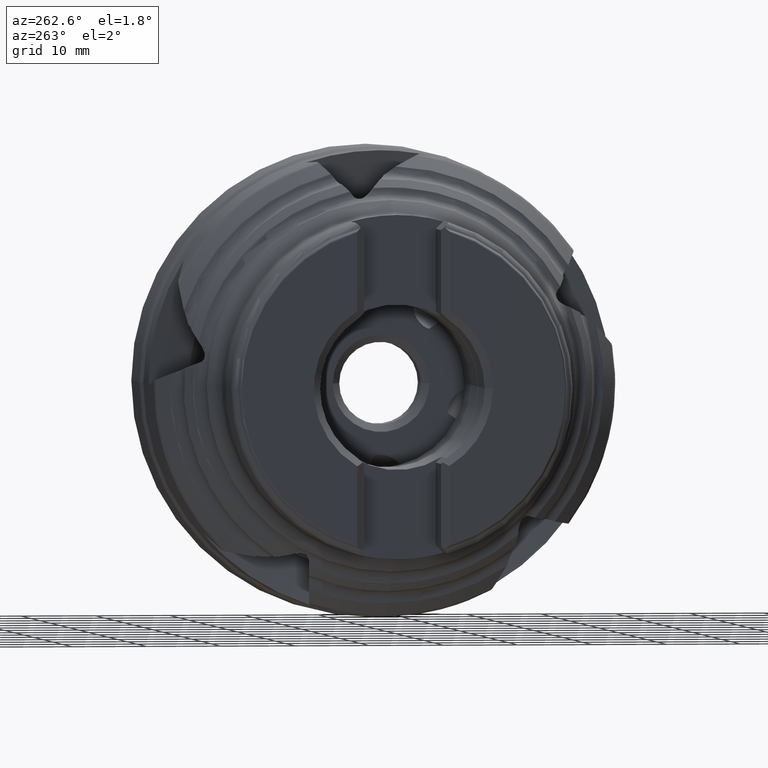
[diagram: clean part render]
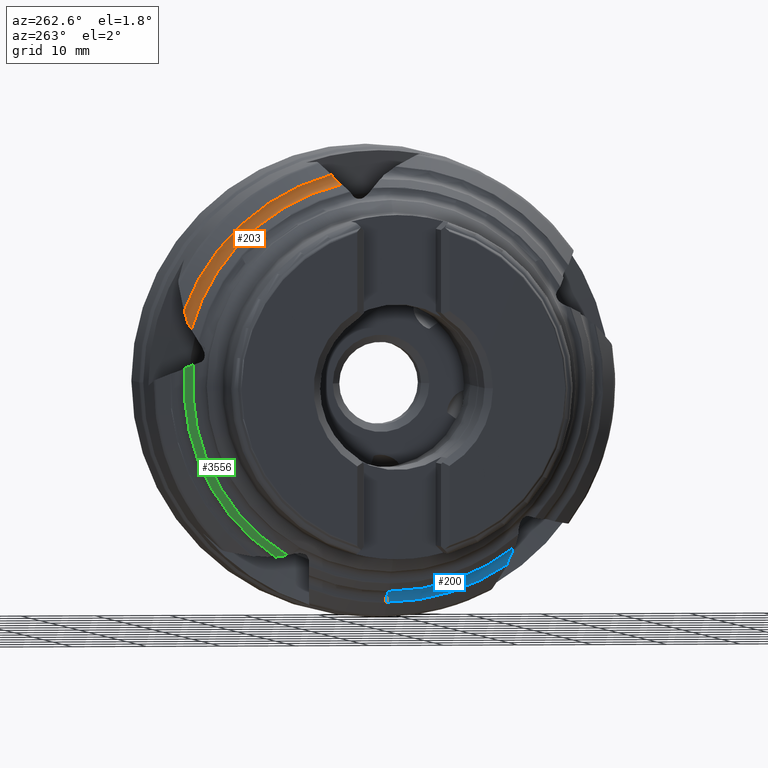
[diagram: same view with three faces highlighted in distinct colors, each labeled with its STEP entity id]
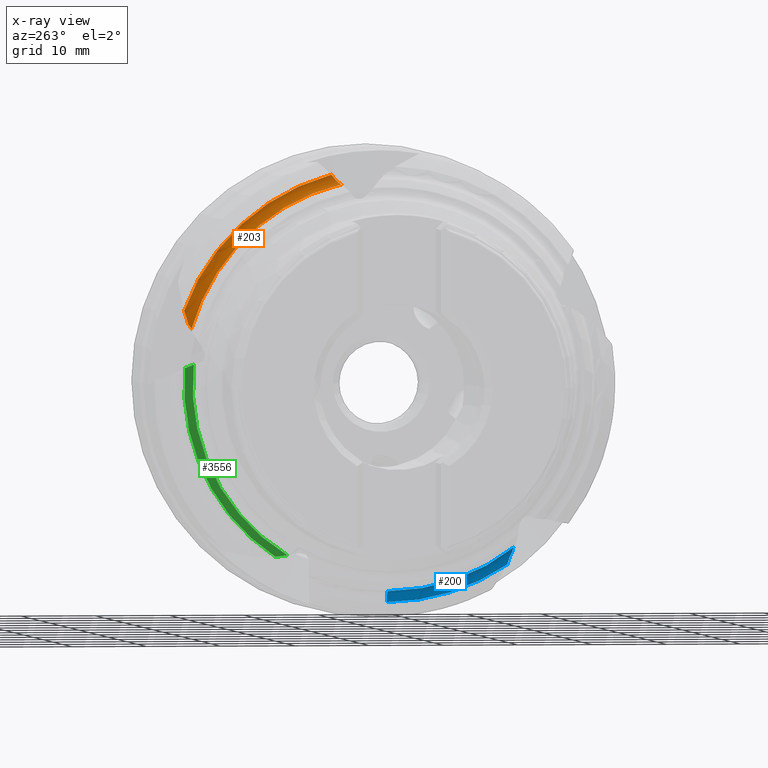
[diagram: x-ray of the same camera — body ghosted, the three highlighted faces saturated]
A machine part, auxiliary view with three faces highlighted in distinct colors.
The next image is the same camera in x-ray (body ghosted, the three faces saturated) — at least one of them is partly hidden behind the body in this view.
Their STEP definitions:

[orange] entity #203 — the highlighted toroidal blend (fillet) surface has major radius 29.0539 mm and minor (blend) radius 1.5 mm.
#203 = ADVANCED_FACE ( 'NONE', ( #4387 ), #4248, .F. ) ;
#248 = EDGE_CURVE ( 'NONE', #480, #700, #10505, .T. ) ;
#249 = EDGE_CURVE ( 'NONE', #480, #702, #4297, .T. ) ;
#250 = EDGE_CURVE ( 'NONE', #701, #702, #10506, .T. ) ;
#251 = EDGE_CURVE ( 'NONE', #482, #701, #4301, .T. ) ;
#252 = EDGE_CURVE ( 'NONE', #700, #482, #10504, .T. ) ;
#303 = EDGE_LOOP ( 'NONE', ( #543, #544, #545, #546, #547 ) ) ;
#480 = VERTEX_POINT ( 'NONE', #4768 ) ;
#482 = VERTEX_POINT ( 'NONE', #4770 ) ;
#543 = ORIENTED_EDGE ( 'NONE', *, *, #248, .F. ) ;
#544 = ORIENTED_EDGE ( 'NONE', *, *, #249, .T. ) ;
#545 = ORIENTED_EDGE ( 'NONE', *, *, #250, .F. ) ;
#546 = ORIENTED_EDGE ( 'NONE', *, *, #251, .F. ) ;
#547 = ORIENTED_EDGE ( 'NONE', *, *, #252, .F. ) ;
#700 = VERTEX_POINT ( 'NONE', #4794 ) ;
#701 = VERTEX_POINT ( 'NONE', #4797 ) ;
#702 = VERTEX_POINT ( 'NONE', #4798 ) ;
#4248 = TOROIDAL_SURFACE ( 'NONE', #4251, 29.05387160771681500, 1.500000000000000000 ) ;
#4251 = AXIS2_PLACEMENT_3D ( 'NONE', #4392, #4389, #4394 ) ;
#4297 = CIRCLE ( 'NONE', #4300, 27.55387160771681500 ) ;
#4299 = AXIS2_PLACEMENT_3D ( 'NONE', #4638, #4639, #4640 ) ;
#4300 = AXIS2_PLACEMENT_3D ( 'NONE', #4619, #4620, #4621 ) ;
#4301 = CIRCLE ( 'NONE', #4299, 29.05037644407040200 ) ;
#4387 = FACE_OUTER_BOUND ( 'NONE', #303, .T. ) ;
#4389 = DIRECTION ( 'NONE',  ( 1.000000000000000000, -0.0000000000000000000, -0.0000000000000000000 ) ) ;
#4392 = CARTESIAN_POINT ( 'NONE',  ( -22.58210432144572300, 0.0000000000000000000, 0.0000000000000000000 ) ) ;
#4394 = DIRECTION ( 'NONE',  ( 0.0000000000000000000, 0.0000000000000000000, -1.000000000000000000 ) ) ;
#4606 = CARTESIAN_POINT ( 'NONE',  ( -21.78011351886360800, 26.57158343351553500, 7.918157684028360100 ) ) ;
#4614 = CARTESIAN_POINT ( 'NONE',  ( -22.16748034680138000, 26.46549646402893400, 7.669045109505294300 ) ) ;
#4615 = CARTESIAN_POINT ( 'NONE',  ( -22.58210432144555600, 26.50501868700274600, 7.529928616937789700 ) ) ;
#4616 = CARTESIAN_POINT ( 'NONE',  ( -21.50426107264349800, 26.79043684464510400, 8.177441414930152400 ) ) ;
#4617 = CARTESIAN_POINT ( 'NONE',  ( -21.12125030229448800, 7.209107115437519500, 27.74206809546811700 ) ) ;
#4618 = CARTESIAN_POINT ( 'NONE',  ( -21.08256008923887500, 7.336665319204715100, 27.90838598010486000 ) ) ;
#4619 = CARTESIAN_POINT ( 'NONE',  ( -22.58210432144572300, 0.0000000000000000000, 0.0000000000000000000 ) ) ;
#4620 = DIRECTION ( 'NONE',  ( 1.000000000000000000, -0.0000000000000000000, -0.0000000000000000000 ) ) ;
#4621 = DIRECTION ( 'NONE',  ( 0.0000000000000000000, 0.0000000000000000000, -1.000000000000000000 ) ) ;
#4622 = CARTESIAN_POINT ( 'NONE',  ( -21.08210839350755400, 7.458880808370978800, 28.07649316828431200 ) ) ;
#4623 = CARTESIAN_POINT ( 'NONE',  ( -21.22986162204349700, 7.025265784976173000, 27.51500143369746400 ) ) ;
#4624 = CARTESIAN_POINT ( 'NONE',  ( -21.27515504357506200, 6.964089279282150700, 27.44162896079828300 ) ) ;
#4625 = CARTESIAN_POINT ( 'NONE',  ( -21.38073822512718200, 6.846683938752137900, 27.30527955948086600 ) ) ;
#4626 = CARTESIAN_POINT ( 'NONE',  ( -21.44080502275138000, 6.790428237353662400, 27.24221234157898100 ) ) ;
#4627 = CARTESIAN_POINT ( 'NONE',  ( -21.57565572286060300, 6.682866837787087500, 27.12640989507478300 ) ) ;
#4628 = CARTESIAN_POINT ( 'NONE',  ( -21.65136935222798100, 6.631086942329067000, 27.07324428977764800 ) ) ;
#4629 = CARTESIAN_POINT ( 'NONE',  ( -21.81284933720900200, 6.536694383951418900, 26.98193432277225400 ) ) ;
#4630 = CARTESIAN_POINT ( 'NONE',  ( -21.89880115748872300, 6.493739391900353700, 26.94336313047400100 ) ) ;
#4631 = CARTESIAN_POINT ( 'NONE',  ( -22.08164374832919900, 6.416731319182070500, 26.88108870447483400 ) ) ;
#4632 = CARTESIAN_POINT ( 'NONE',  ( -22.17947527182912300, 6.382539709937731200, 26.85741973878278100 ) ) ;
#4633 = CARTESIAN_POINT ( 'NONE',  ( -22.37752949405827300, 6.327106652283240400, 26.82847791025291800 ) ) ;
#4634 = CARTESIAN_POINT ( 'NONE',  ( -22.47867867706628100, 6.305355540125368000, 26.82272508001487700 ) ) ;
#4635 = CARTESIAN_POINT ( 'NONE',  ( -22.58210432144572300, 6.290003853290564000, 26.82632461035489500 ) ) ;
#4636 = CARTESIAN_POINT ( 'NONE',  ( -21.37450191416252600, 26.84300000493433200, 8.464471860615114800 ) ) ;
#4637 = CARTESIAN_POINT ( 'NONE',  ( -21.50426107264349800, 26.79043684464510400, 8.177441414930152400 ) ) ;
#4638 = CARTESIAN_POINT ( 'NONE',  ( -21.08210839350755400, 0.0000000000000000000, 0.0000000000000000000 ) ) ;
#4639 = DIRECTION ( 'NONE',  ( 1.000000000000000000, -0.0000000000000000000, -0.0000000000000000000 ) ) ;
#4640 = DIRECTION ( 'NONE',  ( 0.0000000000000000000, 0.0000000000000000000, -1.000000000000000000 ) ) ;
#4641 = CARTESIAN_POINT ( 'NONE',  ( -21.27257383129257200, 26.91066472543195300, 8.756920072891512400 ) ) ;
#4642 = CARTESIAN_POINT ( 'NONE',  ( -21.12636694094393200, 27.07727553030468200, 9.353038856313942200 ) ) ;
#4643 = CARTESIAN_POINT ( 'NONE',  ( -21.08259946442136000, 27.17615865926455900, 9.655944487197933400 ) ) ;
#4644 = CARTESIAN_POINT ( 'NONE',  ( -21.08210839350755400, 27.29251892158847100, 9.952024038201258800 ) ) ;
#4768 = CARTESIAN_POINT ( 'NONE',  ( -22.58210432144555600, 26.50501868700274600, 7.529928616937789700 ) ) ;
#4770 = CARTESIAN_POINT ( 'NONE',  ( -21.08210839350755400, 27.29251892158847100, 9.952024038201258800 ) ) ;
#4794 = CARTESIAN_POINT ( 'NONE',  ( -21.50426107264349800, 26.79043684464510400, 8.177441414930152400 ) ) ;
#4797 = CARTESIAN_POINT ( 'NONE',  ( -21.08210839350755400, 7.458880808370978800, 28.07649316828431200 ) ) ;
#4798 = CARTESIAN_POINT ( 'NONE',  ( -22.58210432144572300, 6.290003853290564000, 26.82632461035489500 ) ) ;
#10504 = B_SPLINE_CURVE_WITH_KNOTS ( 'NONE', 3,
 ( #4637, #4636, #4641, #4642, #4643, #4644 ),
 .UNSPECIFIED., .F., .F.,
 ( 4, 2, 4 ),
 ( 0.001983305558607717300, 0.002932427451923820000, 0.003881549345239922400 ),
 .UNSPECIFIED. ) ;
#10505 = B_SPLINE_CURVE_WITH_KNOTS ( 'NONE', 3,
 ( #4615, #4614, #4606, #4616 ),
 .UNSPECIFIED., .F., .F.,
 ( 4, 4 ),
 ( 0.0001364347269612824100, 0.001448720721892450700 ),
 .UNSPECIFIED. ) ;
#10506 = B_SPLINE_CURVE_WITH_KNOTS ( 'NONE', 3,
 ( #4622, #4618, #4617, #4623, #4624, #4625, #4626, #4627, #4628, #4629, #4630, #4631, #4632, #4633, #4634, #4635 ),
 .UNSPECIFIED., .F., .F.,
 ( 4, 2, 2, 2, 2, 2, 2, 4 ),
 ( 0.001282181288688024100, 0.001904912523629263400, 0.002216278141099887300, 0.002527643758570511500, 0.002839009376041135700, 0.003150374993511759900, 0.003461740610982384100, 0.003773106228453008300 ),
 .UNSPECIFIED. ) ;

[blue] entity #200 — the highlighted toroidal blend (fillet) surface has major radius 29.0539 mm and minor (blend) radius 1.5 mm.
#200 = ADVANCED_FACE ( 'NONE', ( #4374 ), #4231, .F. ) ;
#235 = EDGE_CURVE ( 'NONE', #489, #495, #10513, .T. ) ;
#236 = EDGE_CURVE ( 'NONE', #489, #498, #4288, .T. ) ;
#237 = EDGE_CURVE ( 'NONE', #497, #498, #4286, .T. ) ;
#238 = EDGE_CURVE ( 'NONE', #491, #497, #4289, .T. ) ;
#239 = EDGE_CURVE ( 'NONE', #495, #491, #10512, .T. ) ;
#305 = EDGE_LOOP ( 'NONE', ( #528, #529, #530, #531, #532 ) ) ;
#489 = VERTEX_POINT ( 'NONE', #4777 ) ;
#491 = VERTEX_POINT ( 'NONE', #4779 ) ;
#495 = VERTEX_POINT ( 'NONE', #4783 ) ;
#497 = VERTEX_POINT ( 'NONE', #4785 ) ;
#498 = VERTEX_POINT ( 'NONE', #4786 ) ;
#528 = ORIENTED_EDGE ( 'NONE', *, *, #235, .F. ) ;
#529 = ORIENTED_EDGE ( 'NONE', *, *, #236, .T. ) ;
#530 = ORIENTED_EDGE ( 'NONE', *, *, #237, .F. ) ;
#531 = ORIENTED_EDGE ( 'NONE', *, *, #238, .F. ) ;
#532 = ORIENTED_EDGE ( 'NONE', *, *, #239, .F. ) ;
#4231 = TOROIDAL_SURFACE ( 'NONE', #4245, 29.05387160771681500, 1.500000000000000000 ) ;
#4245 = AXIS2_PLACEMENT_3D ( 'NONE', #4380, #4377, #4382 ) ;
#4286 = CIRCLE ( 'NONE', #4291, 1.500000000000001300 ) ;
#4287 = AXIS2_PLACEMENT_3D ( 'NONE', #4560, #4561, #4562 ) ;
#4288 = CIRCLE ( 'NONE', #4287, 27.55387160771681500 ) ;
#4289 = CIRCLE ( 'NONE', #4293, 29.05037644407040200 ) ;
#4291 = AXIS2_PLACEMENT_3D ( 'NONE', #4563, #4564, #4565 ) ;
#4293 = AXIS2_PLACEMENT_3D ( 'NONE', #4568, #4569, #4570 ) ;
#4374 = FACE_OUTER_BOUND ( 'NONE', #305, .T. ) ;
#4377 = DIRECTION ( 'NONE',  ( 1.000000000000000000, -0.0000000000000000000, -0.0000000000000000000 ) ) ;
#4380 = CARTESIAN_POINT ( 'NONE',  ( -22.58210432144572300, 0.0000000000000000000, 0.0000000000000000000 ) ) ;
#4382 = DIRECTION ( 'NONE',  ( 0.0000000000000000000, 0.0000000000000000000, -1.000000000000000000 ) ) ;
#4548 = CARTESIAN_POINT ( 'NONE',  ( -21.78011351886361500, -16.84268625316751100, -22.02430900279907500 ) ) ;
#4556 = CARTESIAN_POINT ( 'NONE',  ( -22.16748034680138700, -16.90328478943638400, -21.76041634037280300 ) ) ;
#4557 = CARTESIAN_POINT ( 'NONE',  ( -22.58210432144555600, -17.01702956215950000, -21.67109931348967300 ) ) ;
#4558 = CARTESIAN_POINT ( 'NONE',  ( -21.50426107264350900, -16.86733922886480700, -22.36271275493942300 ) ) ;
#4559 = CARTESIAN_POINT ( 'NONE',  ( -21.50426107264350900, -16.86733922886480700, -22.36271275493942300 ) ) ;
#4560 = CARTESIAN_POINT ( 'NONE',  ( -22.58210432144572300, 0.0000000000000000000, 0.0000000000000000000 ) ) ;
#4561 = DIRECTION ( 'NONE',  ( 1.000000000000000000, -0.0000000000000000000, -0.0000000000000000000 ) ) ;
#4562 = DIRECTION ( 'NONE',  ( 0.0000000000000000000, 0.0000000000000000000, -1.000000000000000000 ) ) ;
#4563 = CARTESIAN_POINT ( 'NONE',  ( -22.58210432144572300, 0.0000000000000000000, -29.05387160771681500 ) ) ;
#4564 = DIRECTION ( 'NONE',  ( -0.0000000000000000000, -1.000000000000000000, -0.0000000000000000000 ) ) ;
#4565 = DIRECTION ( 'NONE',  ( 0.0000000000000000000, 0.0000000000000000000, -1.000000000000000000 ) ) ;
#4566 = CARTESIAN_POINT ( 'NONE',  ( -21.37450191416253600, -16.74115145588430000, -22.62582111383347800 ) ) ;
#4568 = CARTESIAN_POINT ( 'NONE',  ( -21.08210839350755400, 0.0000000000000000000, 0.0000000000000000000 ) ) ;
#4569 = DIRECTION ( 'NONE',  ( 1.000000000000000000, -0.0000000000000000000, -0.0000000000000000000 ) ) ;
#4570 = DIRECTION ( 'NONE',  ( 0.0000000000000000000, 0.0000000000000000000, -1.000000000000000000 ) ) ;
#4571 = CARTESIAN_POINT ( 'NONE',  ( -21.27257383129256900, -16.62399661845112700, -22.90218901234864300 ) ) ;
#4572 = CARTESIAN_POINT ( 'NONE',  ( -21.12636694094393200, -16.40839776152941100, -23.48239061278027900 ) ) ;
#4573 = CARTESIAN_POINT ( 'NONE',  ( -21.08259946442136000, -16.31035243064496100, -23.78556846076044500 ) ) ;
#4574 = CARTESIAN_POINT ( 'NONE',  ( -21.08210839350755400, -16.23045866674979700, -24.09349669535592400 ) ) ;
#4777 = CARTESIAN_POINT ( 'NONE',  ( -22.58210432144555600, -17.01702956215950000, -21.67109931348967300 ) ) ;
#4779 = CARTESIAN_POINT ( 'NONE',  ( -21.08210839350755400, -16.23045866674979700, -24.09349669535592400 ) ) ;
#4783 = CARTESIAN_POINT ( 'NONE',  ( -21.50426107264350900, -16.86733922886480700, -22.36271275493942300 ) ) ;
#4785 = CARTESIAN_POINT ( 'NONE',  ( -21.08210839350755400, 0.0000000000000000000, -29.05037644407040200 ) ) ;
#4786 = CARTESIAN_POINT ( 'NONE',  ( -22.58210432144572300, 0.0000000000000000000, -27.55387160771681500 ) ) ;
#10512 = B_SPLINE_CURVE_WITH_KNOTS ( 'NONE', 3,
 ( #4559, #4566, #4571, #4572, #4573, #4574 ),
 .UNSPECIFIED., .F., .F.,
 ( 4, 2, 4 ),
 ( 0.001983305558607701200, 0.002932427451923813900, 0.003881549345239926700 ),
 .UNSPECIFIED. ) ;
#10513 = B_SPLINE_CURVE_WITH_KNOTS ( 'NONE', 3,
 ( #4557, #4556, #4548, #4558 ),
 .UNSPECIFIED., .F., .F.,
 ( 4, 4 ),
 ( 0.0001364347269612817800, 0.001448720721892433800 ),
 .UNSPECIFIED. ) ;

[green] entity #3556 — the highlighted conical surface has half-angle 42.435 deg.
#1751 = EDGE_CURVE ( 'NONE', #2089, #2090, #6302, .T. ) ;
#1880 = EDGE_CURVE ( 'NONE', #2144, #2145, #8794, .T. ) ;
#2089 = VERTEX_POINT ( 'NONE', #8255 ) ;
#2090 = VERTEX_POINT ( 'NONE', #8256 ) ;
#2144 = VERTEX_POINT ( 'NONE', #8310 ) ;
#2145 = VERTEX_POINT ( 'NONE', #8311 ) ;
#2801 = EDGE_CURVE ( 'NONE', #2145, #2089, #9056, .T. ) ;
#2802 = EDGE_CURVE ( 'NONE', #2144, #2090, #9058, .T. ) ;
#2980 = EDGE_LOOP ( 'NONE', ( #3104, #3105, #3106, #3107 ) ) ;
#3104 = ORIENTED_EDGE ( 'NONE', *, *, #1751, .F. ) ;
#3105 = ORIENTED_EDGE ( 'NONE', *, *, #2801, .F. ) ;
#3106 = ORIENTED_EDGE ( 'NONE', *, *, #1880, .F. ) ;
#3107 = ORIENTED_EDGE ( 'NONE', *, *, #2802, .T. ) ;
#3556 = ADVANCED_FACE ( 'NONE', ( #9927 ), #10303, .T. ) ;
#6302 = B_SPLINE_CURVE_WITH_KNOTS ( 'NONE', 3,
 ( #7534, #7539, #7543, #7544 ),
 .UNSPECIFIED., .F., .F.,
 ( 4, 4 ),
 ( 2.916721980329341700E-007, 0.001615803337969909900 ),
 .UNSPECIFIED. ) ;
#7534 = CARTESIAN_POINT ( 'NONE',  ( -22.86511904234957600, 27.40599507188187500, 2.366057987897937300 ) ) ;
#7539 = CARTESIAN_POINT ( 'NONE',  ( -23.23436981147014500, 27.05252765123109500, 2.535471948566995400 ) ) ;
#7543 = CARTESIAN_POINT ( 'NONE',  ( -23.60246247201977400, 26.69793835770010700, 2.705079290215129300 ) ) ;
#7544 = CARTESIAN_POINT ( 'NONE',  ( -23.96923507402112800, 26.34209371495974100, 2.874899450035343800 ) ) ;
#8039 = CARTESIAN_POINT ( 'NONE',  ( -23.96923507402113500, 13.73657725023398000, -22.66003957595592800 ) ) ;
#8041 = CARTESIAN_POINT ( 'NONE',  ( -23.62732346967218100, 14.25743989170449800, -22.70983302919164300 ) ) ;
#8046 = CARTESIAN_POINT ( 'NONE',  ( -23.25805656407836600, 14.75233202717578800, -22.79315112278819200 ) ) ;
#8047 = CARTESIAN_POINT ( 'NONE',  ( -22.86511904234956600, 15.22378523013644400, -22.91120161730478300 ) ) ;
#8255 = CARTESIAN_POINT ( 'NONE',  ( -22.86511904234957600, 27.40599507188187500, 2.366057987897937300 ) ) ;
#8256 = CARTESIAN_POINT ( 'NONE',  ( -23.96923507402112800, 26.34209371495974100, 2.874899450035343800 ) ) ;
#8310 = CARTESIAN_POINT ( 'NONE',  ( -23.96923507402113500, 13.73657725023398000, -22.66003957595592800 ) ) ;
#8311 = CARTESIAN_POINT ( 'NONE',  ( -22.86511904234956600, 15.22378523013644400, -22.91120161730478300 ) ) ;
#8794 = B_SPLINE_CURVE_WITH_KNOTS ( 'NONE', 3,
 ( #8039, #8041, #8046, #8047 ),
 .UNSPECIFIED., .F., .F.,
 ( 4, 4 ),
 ( 4.906538933386797400E-018, 0.001869208965817969900 ),
 .UNSPECIFIED. ) ;
#9056 = CIRCLE ( 'NONE', #9061, 27.50794060416209100 ) ;
#9058 = CIRCLE ( 'NONE', #9062, 26.49850841340951000 ) ;
#9061 = AXIS2_PLACEMENT_3D ( 'NONE', #9560, #9561, #9562 ) ;
#9062 = AXIS2_PLACEMENT_3D ( 'NONE', #9563, #9564, #9565 ) ;
#9560 = CARTESIAN_POINT ( 'NONE',  ( -22.86511904234957300, 0.0000000000000000000, 0.0000000000000000000 ) ) ;
#9561 = DIRECTION ( 'NONE',  ( 1.000000000000000000, -0.0000000000000000000, -0.0000000000000000000 ) ) ;
#9562 = DIRECTION ( 'NONE',  ( 0.0000000000000000000, 0.0000000000000000000, -1.000000000000000000 ) ) ;
#9563 = CARTESIAN_POINT ( 'NONE',  ( -23.96923507402113500, 0.0000000000000000000, 0.0000000000000000000 ) ) ;
#9564 = DIRECTION ( 'NONE',  ( 1.000000000000000000, -0.0000000000000000000, -0.0000000000000000000 ) ) ;
#9565 = DIRECTION ( 'NONE',  ( 0.0000000000000000000, 0.0000000000000000000, -1.000000000000000000 ) ) ;
#9927 = FACE_OUTER_BOUND ( 'NONE', #2980, .T. ) ;
#9929 = DIRECTION ( 'NONE',  ( 0.0000000000000000000, 0.0000000000000000000, -1.000000000000000000 ) ) ;
#9931 = CARTESIAN_POINT ( 'NONE',  ( -22.86511904234957300, 0.0000000000000000000, 0.0000000000000000000 ) ) ;
#9932 = DIRECTION ( 'NONE',  ( 1.000000000000000000, -0.0000000000000000000, -0.0000000000000000000 ) ) ;
#10303 = CONICAL_SURFACE ( 'NONE', #10304, 27.50794060416209100, 0.7406295721257605300 ) ;
#10304 = AXIS2_PLACEMENT_3D ( 'NONE', #9931, #9932, #9929 ) ;